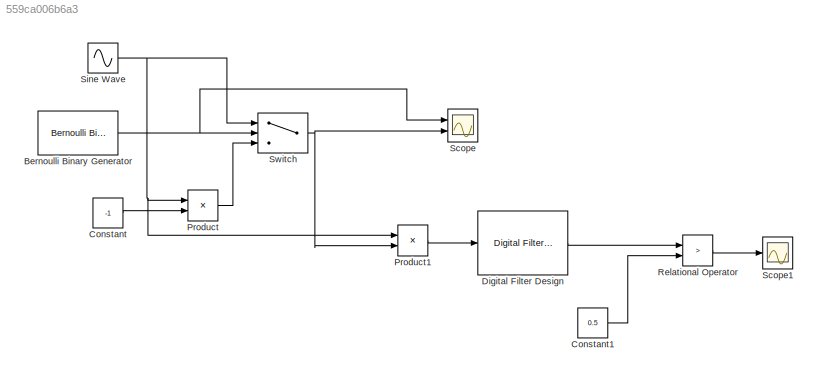
MODEL slx_559ca006b6a3
KIND model
CONFIG AbsTol = auto
CONFIG EnableMultiTasking = off
CONFIG FixedStep = auto
CONFIG MaxStep = auto
CONFIG MinStep = auto
CONFIG RelTol = 1e-3
CONFIG SampleTimeConstraint = Unconstrained
CONFIG SolverName = VariableStepAuto
CONFIG StartTime = 0.0
CONFIG StopTime = 10.0
BLOCK [Reference] Bernoulli Binary Generator  REF=commrandsrc3/Bernoulli Binary
Generator
  Ports = [0, 1]
  SourceBlock = commrandsrc3/Bernoulli Binary\nGenerator
  SourceProductBaseCode = CM
  SourceType = Bernoulli Binary Generator
BLOCK [Constant] Constant
  Value = -1
BLOCK [Constant] Constant1
  Value = 0.5
BLOCK [Reference] Digital Filter Design  REF=dsparch4/Digital
Filter Design
  Ports = [1, 1]
  SourceBlock = dsparch4/Digital\nFilter Design
  SourceProductBaseCode = DS
  SourceType = Digital Filter Design
  UserDataPersistent = on
BLOCK [Product] Product
  Ports = [2, 1]
BLOCK [Product] Product1
  Ports = [2, 1]
BLOCK [RelationalOperator] Relational Operator
  InputSameDT = off
  Operator = >
  OutDataTypeStr = boolean
  Ports = [2, 1]
  RndMeth = Simplest
BLOCK [Scope] Scope
  Floating = off
  NumInputPorts = 2
  Ports = [2]
  ScopeSpecificationString = Simulink.scopes.TimeScopeBlockCfg('CurrentConfiguration', extmgr.ConfigurationSet(extmgr.Configuration('Core','General UI',true),extmgr.Configuration('Core','Source UI',true),extmgr.Configuration('Sources','WiredSimulink',true),extmgr.Configuration('Visuals','Time Domain',true,'SerializedDisplays',{struct('MinYLimReal','-0.125','MaxYLimReal','1.125','YLabelReal','','MinYLimMag','0.00000','MaxYLimM...<+1970ch>
BLOCK [Scope] Scope1
  Floating = off
  NumInputPorts = 1
  Ports = [1]
  ScopeSpecificationString = Simulink.scopes.TimeScopeBlockCfg('CurrentConfiguration', extmgr.ConfigurationSet(extmgr.Configuration('Core','General UI',true),extmgr.Configuration('Core','Source UI',true),extmgr.Configuration('Sources','WiredSimulink',true,'DataLoggingVariableName','ScopeData1'),extmgr.Configuration('Visuals','Time Domain',true,'SerializedDisplays',{struct('MinYLimReal','-0.125','MaxYLimReal','1.125','YLabelRe...<+1366ch>
BLOCK [Sin] Sine Wave
  Frequency = 4*pi*100
  Ports = [0, 1]
  SampleTime = 0.0001
BLOCK [Switch] Switch
  Criteria = u2 > Threshold
  InputSameDT = off
  SaturateOnIntegerOverflow = off
NET Bernoulli Binary Generator:1 -> Scope:1, Switch:2
LINE Constant1:1 -> Relational Operator:2
LINE Constant:1 -> Product:2
LINE Digital Filter Design:1 -> Relational Operator:1
LINE Product1:1 -> Digital Filter Design:1
LINE Product:1 -> Switch:3
LINE Relational Operator:1 -> Scope1:1
NET Sine Wave:1 -> Product1:1, Product:1, Switch:1
NET Switch:1 -> Product1:2, Scope:2
note: NET lines group one-source signal fan-out (src -> all destinations, sorted); 1:1 wires keep LINE
